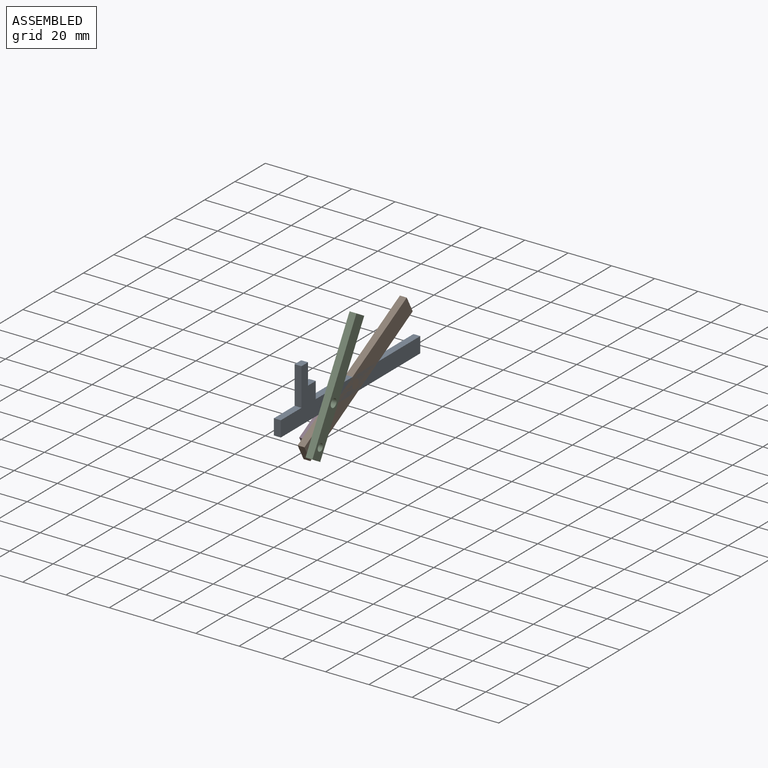
[diagram: assembled view]
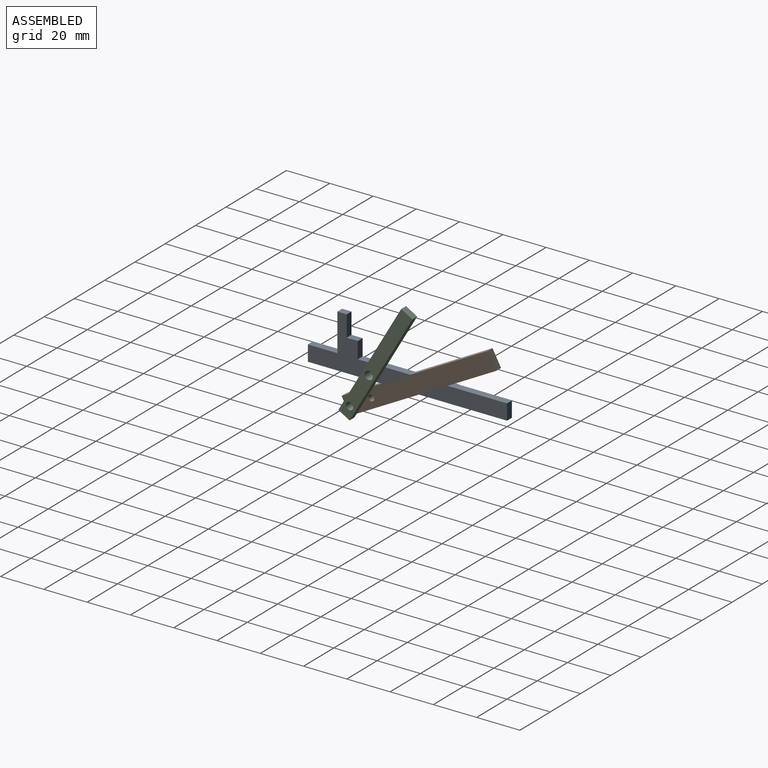
[diagram: assembled view, second angle]
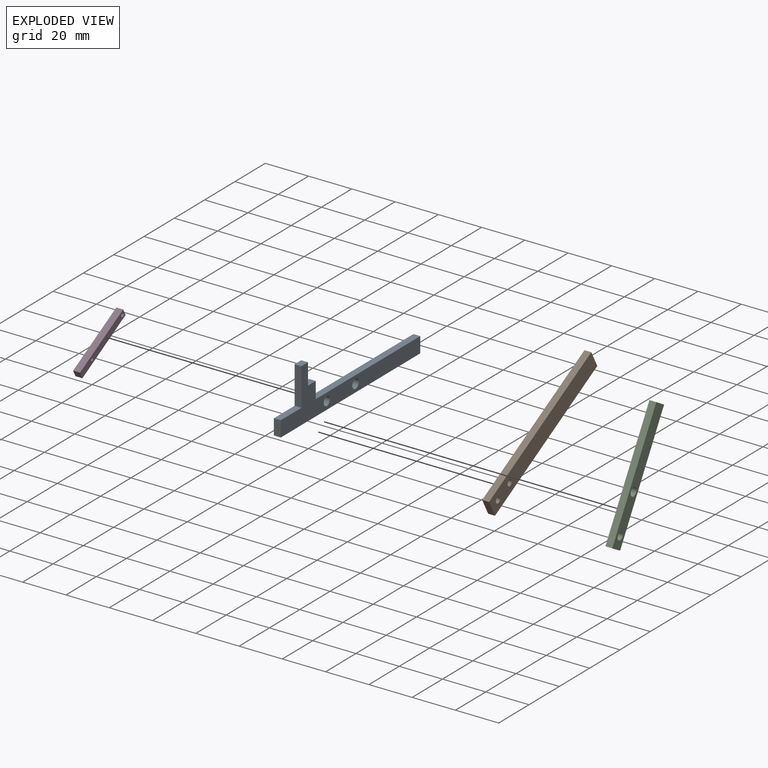
[diagram: exploded view]
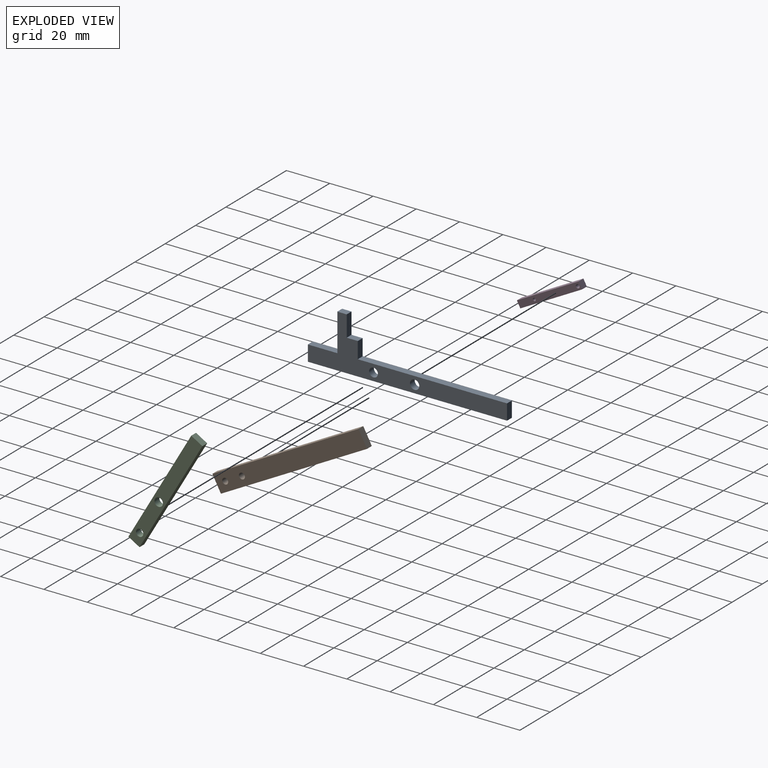
[diagram: exploded view, second angle]
ASSEMBLY  parts=4 mates=4
PART A: 14 faces, bbox 3.2x92.1x24.6 mm
  f0: plane 68.97x3.18mm, normal (0,0,1), area 219mm2, adj f1,f11,f12,f13
  f1: plane 7.62x3.18mm, normal (0,1,0), area 24.2mm2, adj f0,f2,f12,f13
  f2: plane 5.13x3.18mm, normal (0,0,1), area 16.3mm2, adj f1,f3,f12,f13
  f3: plane 9.75x3.18mm, normal (0,1,0), area 30.9mm2, adj f2,f4,f12,f13
  f4: plane 4.32x3.18mm, normal (0,0,1), area 13.7mm2, adj f3,f5,f12,f13
  f5: plane 17.37x3.18mm, normal (0,-1,0), area 55.1mm2, adj f4,f6,f12,f13
  f6: plane 13.64x3.18mm, normal (0,0,1), area 43.3mm2, adj f5,f7,f12,f13
  f7: plane 7.21x3.18mm, normal (0,-1,0), area 22.9mm2, adj f6,f8,f12,f13
  f8: plane 92.06x3.18mm, normal (0,0,-1), area 292.3mm2, adj f7,f11,f12,f13
  f9: cylinder r=2.15mm len=4.3mm, axis (-1,0,0), area 42.9mm2, adj f12,f13
  f10: cylinder r=2.03mm len=4.06mm, axis (-1,0,0), area 40.5mm2, adj f12,f13
  f11: plane 7.21x3.18mm, normal (0,1,0), area 22.9mm2, adj f0,f8,f12,f13
  f12: plane 92.06x24.58mm, normal (1,0,0), area 750.7mm2, adj f0,f1,f2,f3,f4,f5,f6,f7
  f13: plane 92.06x24.58mm, normal (-1,0,0), area 750.7mm2, adj f0,f1,f2,f3,f4,f5,f6,f7
PART B: 8 faces, bbox 3.2x8.3x76.9 mm
  f0: plane 76.88x3.18mm, normal (0,1,0), area 244.1mm2, adj f1,f3,f6,f7
  f1: plane 8.26x3.18mm, normal (0,0,1), area 26.2mm2, adj f0,f2,f6,f7
  f2: plane 76.88x3.18mm, normal (0,-1,0), area 244.1mm2, adj f1,f3,f6,f7
  f3: plane 8.26x3.18mm, normal (0,0,-1), area 26.2mm2, adj f0,f2,f6,f7
  f4: cylinder r=1.38mm len=3.18mm, axis (-1,0,0), area 27.6mm2, adj f6,f7
  f5: cylinder r=1.39mm len=3.18mm, axis (-1,0,0), area 27.8mm2, adj f6,f7
  f6: plane 76.88x8.26mm, normal (-1,0,0), area 622.7mm2, adj f0,f1,f2,f3,f4,f5
  f7: plane 76.88x8.26mm, normal (1,0,0), area 622.7mm2, adj f0,f1,f2,f3,f4,f5
PART C: 8 faces, bbox 3.2x57.8x6 mm
  f0: plane 5.96x3.18mm, normal (0,1,0), area 18.9mm2, adj f1,f3,f6,f7
  f1: plane 57.79x3.18mm, normal (0,0,1), area 183.5mm2, adj f0,f2,f6,f7
  f2: plane 5.96x3.18mm, normal (0,-1,0), area 18.9mm2, adj f1,f3,f6,f7
  f3: plane 57.79x3.18mm, normal (0,0,-1), area 183.5mm2, adj f0,f2,f6,f7
  f4: cylinder r=1.69mm len=3.39mm, axis (-1,0,0), area 33.8mm2, adj f6,f7
  f5: cylinder r=1.94mm len=3.88mm, axis (-1,0,0), area 38.7mm2, adj f6,f7
  f6: plane 57.79x5.96mm, normal (1,0,0), area 323.4mm2, adj f0,f1,f2,f3,f4,f5
  f7: plane 57.79x5.96mm, normal (-1,0,0), area 323.4mm2, adj f0,f1,f2,f3,f4,f5
PART D: 8 faces, bbox 3.2x32.5x3.3 mm
  f0: plane 3.33x3.18mm, normal (0,1,0), area 10.6mm2, adj f1,f4,f6,f7
  f1: plane 32.47x3.18mm, normal (0,0,1), area 103.1mm2, adj f0,f2,f6,f7
  f2: plane 3.33x3.18mm, normal (0,-1,0), area 10.6mm2, adj f1,f4,f6,f7
  f3: cylinder r=0.67mm len=3.18mm, axis (-1,0,0), area 13.4mm2, adj f6,f7
  f4: plane 32.47x3.18mm, normal (0,0,-1), area 103.1mm2, adj f0,f2,f6,f7
  f5: cylinder r=0.87mm len=3.18mm, axis (-1,0,0), area 17.4mm2, adj f6,f7
  f6: plane 32.47x3.33mm, normal (1,0,0), area 104.5mm2, adj f0,f1,f2,f3,f4,f5
  f7: plane 32.47x3.33mm, normal (-1,0,0), area 104.5mm2, adj f0,f1,f2,f3,f4,f5
PLACE A t=(6.15,14.51,-8.55)mm fixed
PLACE B rot(axis=(-1,0,0),61.4deg) t=(9.33,1.96,-14.84)mm
PLACE C rot(axis=(-1,0,0),120.2deg) t=(9.33,1.91,-3.24)mm
PLACE D rot(axis=(1,0,0),28.6deg) t=(2.98,4.75,-15.67)mm
MATE revolute C.f5 <-> A.f10  axis (-1,0,0) through (9.33,-1.17,-8.55)mm
MATE revolute D.f5 <-> A.f9  axis (1,0,0) through (6.15,17.83,-8.55)mm
MATE revolute B.f4 <-> C.f4  axis (1,0,0) through (9.33,-9.99,-23.7)mm
MATE revolute D.f3 <-> B.f5  axis (1,0,0) through (6.15,-2.25,-19.48)mm
